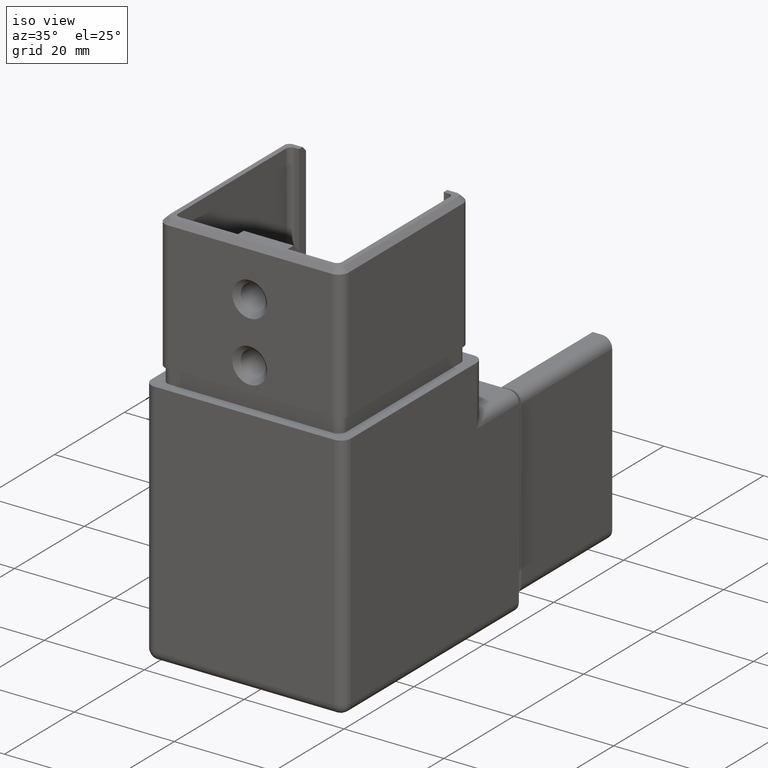
[diagram: clean part render]
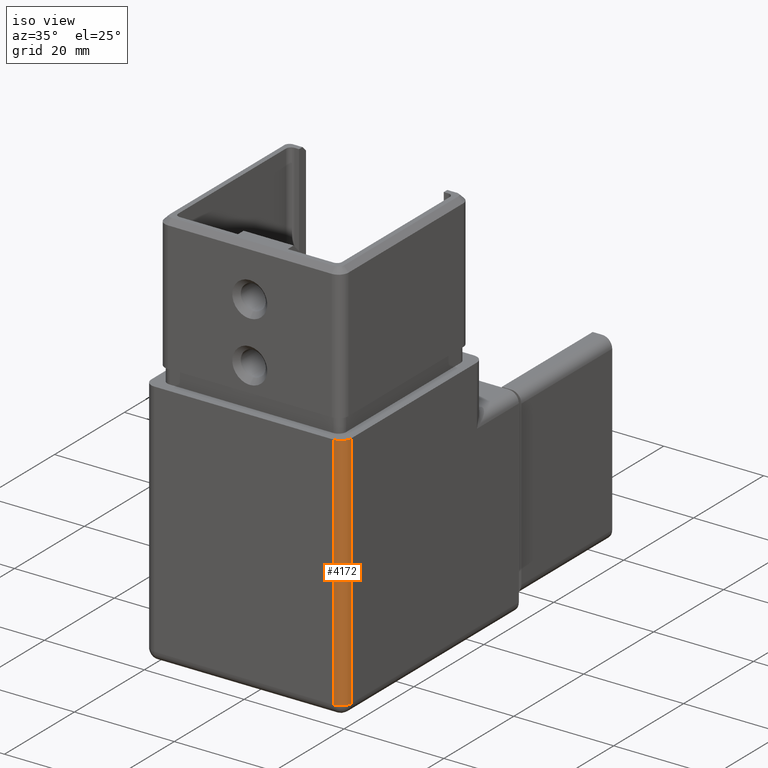
[diagram: same view with one face highlighted and labeled with its STEP entity id]
A machine part, iso view. The second image highlights one B-rep face of the part: STEP entity #4172.
In plain terms, the highlighted cylindrical surface (edge-blend (fillet) strip) has radius 2 mm, axis along (0, -0, 1).
Its self-contained STEP definition (entity closure, byte-faithful):
#179 = CARTESIAN_POINT ( 'NONE',  ( 18.00000000000000711, 2.000000000000001776, 0.000000000000000000 ) ) ;
#432 = CARTESIAN_POINT ( 'NONE',  ( 20.00000000000000355, 2.000000000000001776, 0.000000000000000000 ) ) ;
#1356 = DIRECTION ( 'NONE',  ( 0.000000000000000000, -1.000000000000000000, -2.168404344971005910E-16 ) ) ;
#2394 = LINE ( 'NONE', #432, #13894 ) ;
#2426 = DIRECTION ( 'NONE',  ( -1.000000000000000000, 0.000000000000000000, 0.000000000000000000 ) ) ;
#2561 = CARTESIAN_POINT ( 'NONE',  ( 18.00000000000000711, 1.999999999999995781, 50.00000000000000000 ) ) ;
#3534 = VERTEX_POINT ( 'NONE', #9532 ) ;
#3578 = AXIS2_PLACEMENT_3D ( 'NONE', #7622, #18674, #1356 ) ;
#4172 = ADVANCED_FACE ( 'NONE', ( #5857 ), #17315, .T. ) ;
#4407 = CARTESIAN_POINT ( 'NONE',  ( 18.00000000000000711, -1.060589267999932194E-15, 1.999999999999995337 ) ) ;
#4573 = VERTEX_POINT ( 'NONE', #6482 ) ;
#4608 = AXIS2_PLACEMENT_3D ( 'NONE', #179, #4918, #9929 ) ;
#4918 = DIRECTION ( 'NONE',  ( 0.000000000000000000, -1.224646799147353207E-16, 1.000000000000000000 ) ) ;
#5151 = CIRCLE ( 'NONE', #18418, 2.000000000000001776 ) ;
#5651 = ORIENTED_EDGE ( 'NONE', *, *, #15369, .T. ) ;
#5857 = FACE_OUTER_BOUND ( 'NONE', #17482, .T. ) ;
#6305 = VERTEX_POINT ( 'NONE', #13968 ) ;
#6427 = EDGE_CURVE ( 'NONE', #7086, #4573, #16799, .T. ) ;
#6482 = CARTESIAN_POINT ( 'NONE',  ( 18.00000000000000711, -6.938893903907228378E-15, 50.00000000000000000 ) ) ;
#7086 = VERTEX_POINT ( 'NONE', #4407 ) ;
#7622 = CARTESIAN_POINT ( 'NONE',  ( 18.00000000000000711, 2.000000000000001332, 2.000000000000002220 ) ) ;
#8161 = DIRECTION ( 'NONE',  ( 0.000000000000000000, -1.224646799147353207E-16, 1.000000000000000000 ) ) ;
#9125 = ORIENTED_EDGE ( 'NONE', *, *, #6427, .F. ) ;
#9532 = CARTESIAN_POINT ( 'NONE',  ( 20.00000000000000355, 1.999999999999995781, 50.00000000000000000 ) ) ;
#9730 = ORIENTED_EDGE ( 'NONE', *, *, #16568, .F. ) ;
#9929 = DIRECTION ( 'NONE',  ( 0.000000000000000000, -1.000000000000000000, -1.224646799147353207E-16 ) ) ;
#11410 = DIRECTION ( 'NONE',  ( 0.000000000000000000, -1.224646799147353207E-16, 1.000000000000000000 ) ) ;
#12269 = CIRCLE ( 'NONE', #3578, 2.000000000000002665 ) ;
#12398 = CARTESIAN_POINT ( 'NONE',  ( 18.00000000000000711, -8.156599081704619967E-16, 0.000000000000000000 ) ) ;
#13894 = VECTOR ( 'NONE', #11410, 1000.000000000000000 ) ;
#13968 = CARTESIAN_POINT ( 'NONE',  ( 20.00000000000000355, 2.000000000000001776, 2.000000000000001776 ) ) ;
#15022 = DIRECTION ( 'NONE',  ( 0.000000000000000000, 0.000000000000000000, 1.000000000000000000 ) ) ;
#15239 = ORIENTED_EDGE ( 'NONE', *, *, #19104, .T. ) ;
#15369 = EDGE_CURVE ( 'NONE', #7086, #6305, #12269, .T. ) ;
#16568 = EDGE_CURVE ( 'NONE', #4573, #3534, #5151, .T. ) ;
#16799 = LINE ( 'NONE', #12398, #17501 ) ;
#17315 = CYLINDRICAL_SURFACE ( 'NONE', #4608, 2.000000000000002665 ) ;
#17482 = EDGE_LOOP ( 'NONE', ( #9125, #5651, #15239, #9730 ) ) ;
#17501 = VECTOR ( 'NONE', #8161, 1000.000000000000000 ) ;
#18418 = AXIS2_PLACEMENT_3D ( 'NONE', #2561, #15022, #2426 ) ;
#18674 = DIRECTION ( 'NONE',  ( 0.000000000000000000, -1.224646799147353207E-16, 1.000000000000000000 ) ) ;
#19104 = EDGE_CURVE ( 'NONE', #6305, #3534, #2394, .T. ) ;